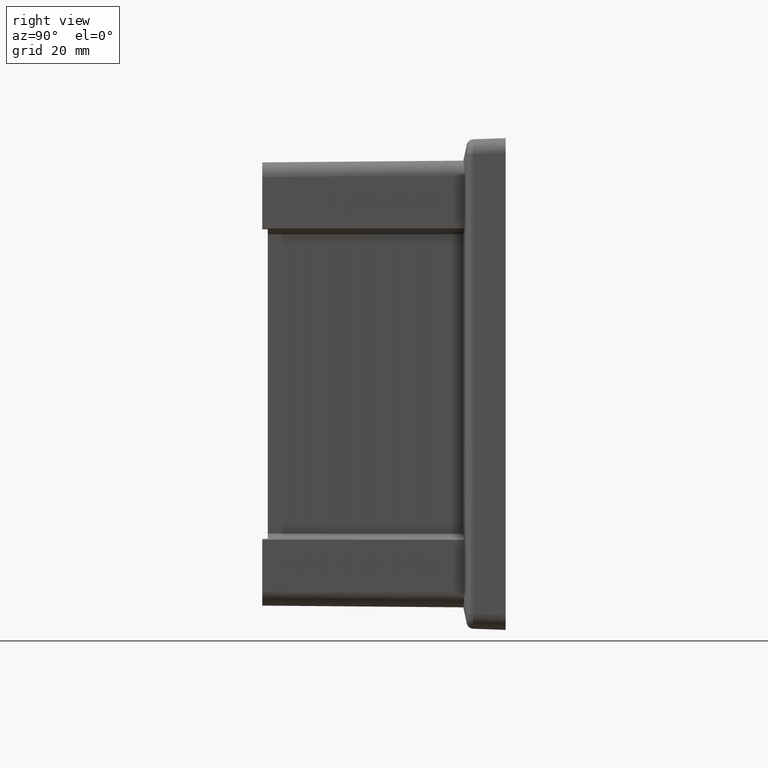
[diagram: clean part render]
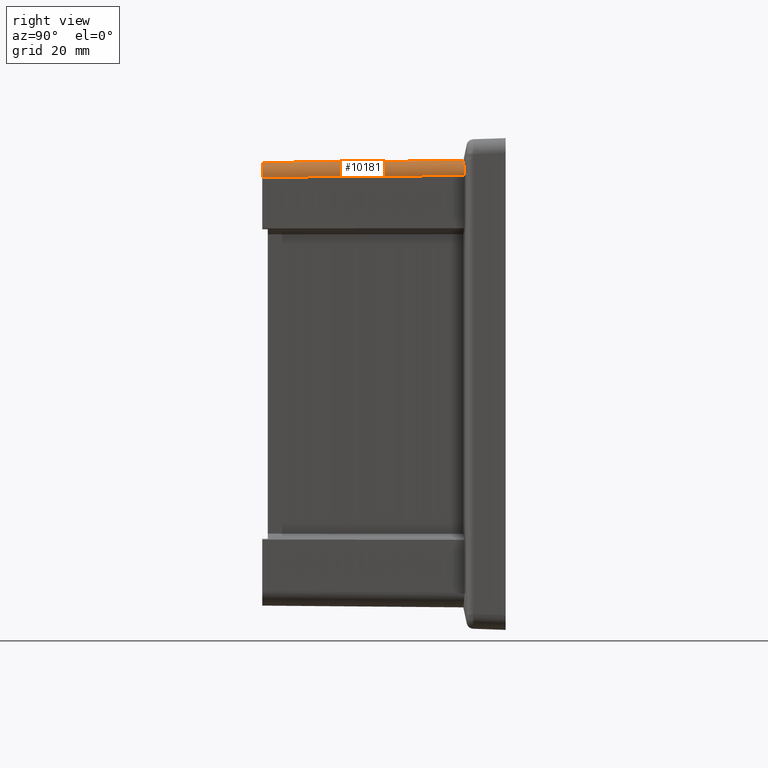
[diagram: same view with one face highlighted and labeled with its STEP entity id]
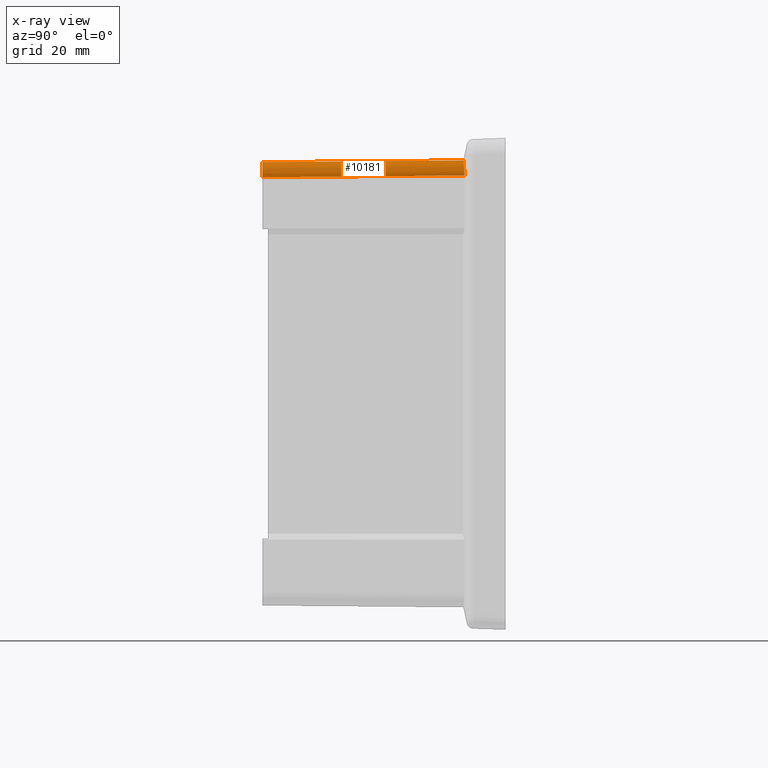
[diagram: x-ray of the same camera — body ghosted, the highlighted face saturated]
A machine part, right view. The second image highlights one B-rep face of the part: STEP entity #10181.
The next image is the same camera in x-ray: the body ghosted, the highlighted face saturated — about 0% of this face is hidden behind the body in this view.
In plain terms, the highlighted cylindrical surface (edge-blend (fillet) strip) has radius 5.5 mm, axis along (0.0087, 0.9999, 0.0087).
Its self-contained STEP definition (entity closure, byte-faithful):
#276 = CARTESIAN_POINT ( 'NONE',  ( 82.82532827458089700, -15.29930581044944800, 78.81566846791029900 ) ) ;
#291 = CARTESIAN_POINT ( 'NONE',  ( 78.74333642699228600, -15.58751162225608800, 82.48427333887929100 ) ) ;
#615 = CARTESIAN_POINT ( 'NONE',  ( 82.38332056635971400, -15.37749614275352400, 79.87309362801052300 ) ) ;
#727 = DIRECTION ( 'NONE',  ( 0.008726203243944222500, 0.9999238504775704900, 0.008726203243944238200 ) ) ;
#814 = ORIENTED_EDGE ( 'NONE', *, *, #5642, .F. ) ;
#821 = CARTESIAN_POINT ( 'NONE',  ( 82.44786727501788400, -90.00000000000000000, 76.44807669816491100 ) ) ;
#1049 = CARTESIAN_POINT ( 'NONE',  ( 82.82532827458089700, -15.29930581044944800, 78.81566846791029900 ) ) ;
#1121 = VECTOR ( 'NONE', #3715, 1000.000000000000100 ) ;
#1685 = CARTESIAN_POINT ( 'NONE',  ( 79.02689024589005800, -15.57870913023179100, 82.41611179144970800 ) ) ;
#2024 = CARTESIAN_POINT ( 'NONE',  ( 82.64432393304747400, -15.33777947093313400, 79.36560555619796300 ) ) ;
#2120 = CARTESIAN_POINT ( 'NONE',  ( 77.61221837238603900, -13.89690205638267900, 82.61200894923895500 ) ) ;
#2551 = EDGE_CURVE ( 'NONE', #7424, #9272, #3507, .T. ) ;
#2808 = ORIENTED_EDGE ( 'NONE', *, *, #12426, .F. ) ;
#3086 = CARTESIAN_POINT ( 'NONE',  ( 79.57301669333296000, -15.56064505234267700, 82.23855788978943300 ) ) ;
#3404 = CARTESIAN_POINT ( 'NONE',  ( 82.82532827458089700, -15.29930581044944800, 78.81566846791029900 ) ) ;
#3507 = LINE ( 'NONE', #2120, #11892 ) ;
#3715 = DIRECTION ( 'NONE',  ( -0.008726203243944224300, -0.9999238504775704900, -0.008726203243944238200 ) ) ;
#4323 =( BOUNDED_CURVE ( )  B_SPLINE_CURVE ( 3, ( #1049, #13235, #11832, #10463 ),
 .UNSPECIFIED., .F., .F. ) 
 B_SPLINE_CURVE_WITH_KNOTS ( ( 4, 4 ),
 ( 6.005297046354391100, 6.322526357496633100 ),
 .UNSPECIFIED. ) 
 CURVE ( )  GEOMETRIC_REPRESENTATION_ITEM ( )  RATIONAL_B_SPLINE_CURVE ( ( 1.000000000000000000, 0.9916313643747372000, 0.9916313643747372000, 1.000000000000000000 ) ) 
 REPRESENTATION_ITEM ( '' )  );
#4462 = CARTESIAN_POINT ( 'NONE',  ( 79.83715882706400200, -15.55133664628595400, 82.12919165924040500 ) ) ;
#4679 = EDGE_CURVE ( 'NONE', #11158, #11123, #4323, .T. ) ;
#5119 = CARTESIAN_POINT ( 'NONE',  ( 83.09831367871696300, -15.46622461865634300, 77.09852310186400400 ) ) ;
#5642 = EDGE_CURVE ( 'NONE', #11123, #12458, #6500, .T. ) ;
#5720 = CARTESIAN_POINT ( 'NONE',  ( 82.44786727501788400, -90.00000000000000000, 76.44807669816491100 ) ) ;
#5858 = CARTESIAN_POINT ( 'NONE',  ( 80.34769903864199100, -15.53064223743109400, 81.86964079111966400 ) ) ;
#6500 = LINE ( 'NONE', #5119, #1121 ) ;
#6894 = CARTESIAN_POINT ( 'NONE',  ( 76.94807669816492500, -90.00000000000000000, 81.94786727501785600 ) ) ;
#7173 = EDGE_LOOP ( 'NONE', ( #2808, #814, #8298, #8656, #13544 ) ) ;
#7256 = CARTESIAN_POINT ( 'NONE',  ( 80.59614578020091400, -15.51913737531022100, 81.71783464517717700 ) ) ;
#7424 = VERTEX_POINT ( 'NONE', #6894 ) ;
#7559 = CARTESIAN_POINT ( 'NONE',  ( 83.10028038032462000, -15.24086293622863200, 77.10048980347160400 ) ) ;
#7703 = DIRECTION ( 'NONE',  ( 0.0000000000000000000, -0.008726535498373794200, 0.9999619230641713100 ) ) ;
#8298 = ORIENTED_EDGE ( 'NONE', *, *, #4679, .F. ) ;
#8628 = CARTESIAN_POINT ( 'NONE',  ( 81.06203516611394400, -15.49355946000863500, 81.38002366630306000 ) ) ;
#8656 = ORIENTED_EDGE ( 'NONE', *, *, #10819, .T. ) ;
#8835 = FACE_OUTER_BOUND ( 'NONE', #7173, .T. ) ;
#9104 = DIRECTION ( 'NONE',  ( 0.008726203243944222500, 0.9999238504775704900, 0.008726203243944236400 ) ) ;
#9272 = VERTEX_POINT ( 'NONE', #12481 ) ;
#9688 = CARTESIAN_POINT ( 'NONE',  ( 77.59711863603155300, -15.62716046255105300, 82.59690921288446900 ) ) ;
#9747 = B_SPLINE_CURVE_WITH_KNOTS ( 'NONE', 3,
 ( #3404, #2024, #615, #12802, #11423, #10024, #8628, #7256, #5858, #4462, #3086, #1685, #291, #12475, #11083, #9688 ),
 .UNSPECIFIED., .F., .F.,
 ( 4, 2, 2, 2, 2, 2, 2, 4 ),
 ( 0.0000000000000000000, 0.001716028737363154600, 0.002574043106044719700, 0.003432057474726284800, 0.004290071843407850000, 0.005148086212089415100, 0.006006100580770980200, 0.006864114949452545400 ),
 .UNSPECIFIED. ) ;
#9882 = AXIS2_PLACEMENT_3D ( 'NONE', #10490, #9104, #7703 ) ;
#10024 = CARTESIAN_POINT ( 'NONE',  ( 81.27959948450090600, -15.47952249507714700, 81.19457343578358200 ) ) ;
#10181 = ADVANCED_FACE ( 'NONE', ( #8835 ), #10250, .T. ) ;
#10237 = CARTESIAN_POINT ( 'NONE',  ( 76.94807669816492500, -90.00000000000000000, 81.94786727501785600 ) ) ;
#10250 = CYLINDRICAL_SURFACE ( 'NONE', #9882, 5.500000000000002700 ) ;
#10463 = CARTESIAN_POINT ( 'NONE',  ( 83.10028038032462000, -15.24086293622863200, 77.10048980347160400 ) ) ;
#10490 = CARTESIAN_POINT ( 'NONE',  ( 77.61221837238603900, -13.84890611114162300, 77.11221837238601000 ) ) ;
#10819 = EDGE_CURVE ( 'NONE', #11158, #9272, #9747, .T. ) ;
#11083 = CARTESIAN_POINT ( 'NONE',  ( 77.88702057071743900, -15.61577626857883900, 82.59700856124018700 ) ) ;
#11123 = VERTEX_POINT ( 'NONE', #7559 ) ;
#11158 = VERTEX_POINT ( 'NONE', #276 ) ;
#11271 =( BOUNDED_CURVE ( )  B_SPLINE_CURVE ( 3, ( #821, #12995, #11601, #10237 ),
 .UNSPECIFIED., .F., .F. ) 
 B_SPLINE_CURVE_WITH_KNOTS ( ( 4, 4 ),
 ( 5.497825219993079500, 7.068545394366093900 ),
 .UNSPECIFIED. ) 
 CURVE ( )  GEOMETRIC_REPRESENTATION_ITEM ( )  RATIONAL_B_SPLINE_CURVE ( ( 1.000000000000000000, 0.8047558030806121200, 0.8047558030806121200, 1.000000000000000000 ) ) 
 REPRESENTATION_ITEM ( '' )  );
#11423 = CARTESIAN_POINT ( 'NONE',  ( 81.68457357436972200, -15.44862545115110400, 80.79126436720970600 ) ) ;
#11601 = CARTESIAN_POINT ( 'NONE',  ( 80.16983023744705900, -90.00000000000000000, 81.94786727501782800 ) ) ;
#11832 = CARTESIAN_POINT ( 'NONE',  ( 83.10028038032459100, -15.24086293622863200, 77.68455113403753400 ) ) ;
#11892 = VECTOR ( 'NONE', #727, 1000.000000000000100 ) ;
#12426 = EDGE_CURVE ( 'NONE', #12458, #7424, #11271, .T. ) ;
#12458 = VERTEX_POINT ( 'NONE', #5720 ) ;
#12475 = CARTESIAN_POINT ( 'NONE',  ( 78.17423920492166200, -15.60601879575558500, 82.57432942365758800 ) ) ;
#12481 = CARTESIAN_POINT ( 'NONE',  ( 77.59711863603155300, -15.62716046255105300, 82.59690921288446900 ) ) ;
#12802 = CARTESIAN_POINT ( 'NONE',  ( 81.87307907526980000, -15.43164515413099700, 80.57186864008519900 ) ) ;
#12995 = CARTESIAN_POINT ( 'NONE',  ( 82.44786727501784200, -90.00000000000000000, 79.66983023744705900 ) ) ;
#13235 = CARTESIAN_POINT ( 'NONE',  ( 83.00785621424111600, -15.26050829918655600, 78.26110230216245600 ) ) ;
#13544 = ORIENTED_EDGE ( 'NONE', *, *, #2551, .F. ) ;